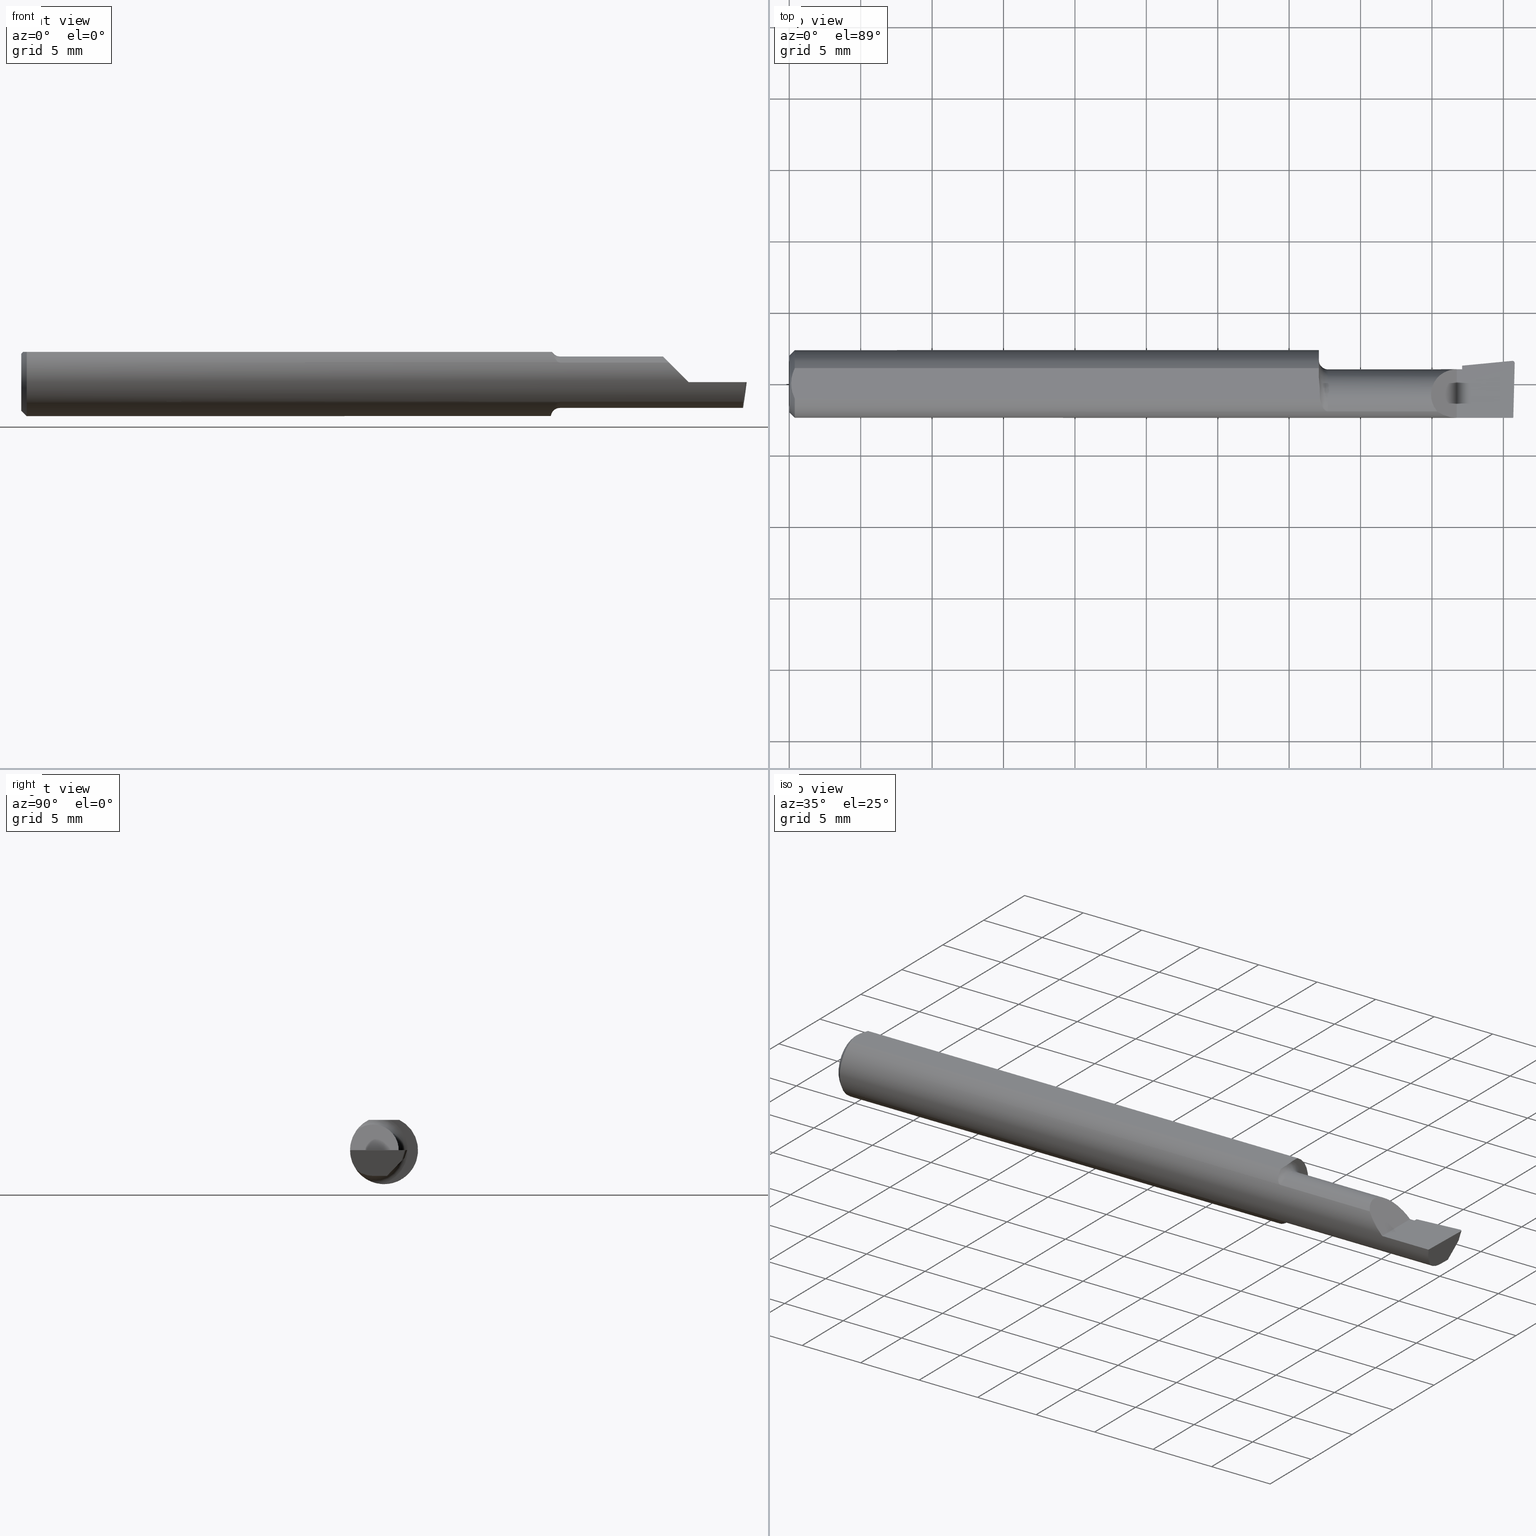
[diagram: canonical four-view strip — front | top / right | iso, engineering-drawing reading convention]
A machine part, canonical four-view strip (front | top / right | iso — engineering-drawing reading convention). The complete STEP part file that produces these views, byte-faithful:
ISO-10303-21;
HEADER;
FILE_DESCRIPTION (( 'STEP AP214' ),
    '1' );
FILE_NAME ('B160500R.STEP',
    '2020-05-08T22:44:34',
    ( '' ),
    ( '' ),
    'SwSTEP 2.0',
    'SolidWorks 2018',
    '' );
FILE_SCHEMA (( 'AUTOMOTIVE_DESIGN' ));
ENDSEC;

DATA;
#1 = CARTESIAN_POINT ( 'NONE',  ( 0.005981829149300850468, 0.01454044632356567279, 0.08360000000000000764 ) ) ;
#2 = DIRECTION ( 'NONE',  ( 0.0000000000000000000, 0.0000000000000000000, 1.000000000000000000 ) ) ;
#3 = DIRECTION ( 'NONE',  ( -1.000000000000000000, -0.0000000000000000000, -0.0000000000000000000 ) ) ;
#4 = CARTESIAN_POINT ( 'NONE',  ( 0.005000000000000223883, 0.007308422719211823959, 0.08360000000000000764 ) ) ;
#5 = ADVANCED_FACE ( 'NONE', ( #399 ), #286, .T. ) ;
#6 = ORIENTED_EDGE ( 'NONE', *, *, #424, .F. ) ;
#7 = DIRECTION ( 'NONE',  ( 0.9953961983671800740, 0.09584575252021028391, -0.0000000000000000000 ) ) ;
#8 = LINE ( 'NONE', #376, #29 ) ;
#9 = CARTESIAN_POINT ( 'NONE',  ( 0.005000000000000236026, 1.025183009042025117E-17, 0.08360000000000000764 ) ) ;
#10 = CARTESIAN_POINT ( 'NONE',  ( 1.434596552969581662, 0.003814945941878274301, -0.01999999999999999695 ) ) ;
#11 = ADVANCED_FACE ( 'NONE', ( #12 ), #489, .T. ) ;
#12 = FACE_OUTER_BOUND ( 'NONE', #590, .T. ) ;
#13 = VERTEX_POINT ( 'NONE', #210 ) ;
#14 = VECTOR ( 'NONE', #174, 39.37007874015748143 ) ;
#15 =( BOUNDED_CURVE ( )  B_SPLINE_CURVE ( 3, ( #368, #360, #359, #418 ),
 .UNSPECIFIED., .F., .T. ) 
 B_SPLINE_CURVE_WITH_KNOTS ( ( 4, 4 ),
 ( 0.7460354263298278887, 1.360746882514785705 ),
 .UNSPECIFIED. ) 
 CURVE ( )  GEOMETRIC_REPRESENTATION_ITEM ( )  RATIONAL_B_SPLINE_CURVE ( ( 1.000000000000000000, 0.9687579316594154832, 0.9687579316594154832, 1.000000000000000000 ) ) 
 REPRESENTATION_ITEM ( '' )  );
#16 = CARTESIAN_POINT ( 'NONE',  ( 0.01499999999999999598, 0.0000000000000000000, -0.09360000000000001652 ) ) ;
#17 = B_SPLINE_CURVE_WITH_KNOTS ( 'NONE', 3,
 ( #9, #4, #1, #257, #230, #225 ),
 .UNSPECIFIED., .F., .F.,
 ( 4, 2, 4 ),
 ( 0.006881281100865560205, 0.007427683811376459971, 0.007974086521887359738 ),
 .UNSPECIFIED. ) ;
#18 = VERTEX_POINT ( 'NONE', #23 ) ;
#19 = CARTESIAN_POINT ( 'NONE',  ( 1.986456763647800550, -0.06267397991240475363, -0.08317158399080336328 ) ) ;
#20 = ADVANCED_FACE ( 'NONE', ( #170 ), #668, .T. ) ;
#21 = ORIENTED_EDGE ( 'NONE', *, *, #600, .F. ) ;
#22 = FACE_OUTER_BOUND ( 'NONE', #222, .T. ) ;
#23 = CARTESIAN_POINT ( 'NONE',  ( 1.995862624392067852, -0.09360000000000009979, -6.605666309584449409E-17 ) ) ;
#24 = ORIENTED_EDGE ( 'NONE', *, *, #396, .T. ) ;
#25 = ORIENTED_EDGE ( 'NONE', *, *, #532, .F. ) ;
#26 = ADVANCED_FACE ( 'NONE', ( #189 ), #445, .F. ) ;
#27 = ORIENTED_EDGE ( 'NONE', *, *, #244, .T. ) ;
#28 = PRODUCT_DEFINITION_FORMATION_WITH_SPECIFIED_SOURCE ( 'ANY', '', #495, .NOT_KNOWN. ) ;
#29 = VECTOR ( 'NONE', #316, 39.37007874015748854 ) ;
#30 = AXIS2_PLACEMENT_3D ( 'NONE', #308, #266, #263 ) ;
#31 = ADVANCED_FACE ( 'NONE', ( #653 ), #503, .T. ) ;
#32 = VECTOR ( 'NONE', #490, 39.37007874015748143 ) ;
#33 = ORIENTED_EDGE ( 'NONE', *, *, #450, .F. ) ;
#34 = AXIS2_PLACEMENT_3D ( 'NONE', #238, #147, #491 ) ;
#35 = ADVANCED_FACE ( 'NONE', ( #139 ), #149, .F. ) ;
#36 = PRESENTATION_LAYER_ASSIGNMENT (  '', '', ( #611 ) ) ;
#37 = CIRCLE ( 'NONE', #576, 0.07089999999999994917 ) ;
#38 = CARTESIAN_POINT ( 'NONE',  ( 1.669999999999999929, -0.07646557377049184590, -0.05398125626501730501 ) ) ;
#39 = ORIENTED_EDGE ( 'NONE', *, *, #73, .F. ) ;
#40 = VERTEX_POINT ( 'NONE', #155 ) ;
#41 = CARTESIAN_POINT ( 'NONE',  ( 0.01499999999999999598, 0.0000000000000000000, -0.09360000000000001652 ) ) ;
#42 = ORIENTED_EDGE ( 'NONE', *, *, #477, .F. ) ;
#43 = AXIS2_PLACEMENT_3D ( 'NONE', #179, #159, #115 ) ;
#44 = ORIENTED_EDGE ( 'NONE', *, *, #145, .T. ) ;
#45 = CARTESIAN_POINT ( 'NONE',  ( 1.463304846087257527, -0.03228758060674653124, 0.08360000000000003539 ) ) ;
#46 = APPLICATION_CONTEXT ( 'automotive_design' ) ;
#47 = DIRECTION ( 'NONE',  ( -1.000000000000000000, -4.268512490100411279E-18, 0.0000000000000000000 ) ) ;
#48 = DIRECTION ( 'NONE',  ( -0.9922060308645512805, 0.02598182930468072652, 0.1218693434051217050 ) ) ;
#49 = CARTESIAN_POINT ( 'NONE',  ( 1.459999999999999742, 0.1436000000000000332, 0.08359999999999999376 ) ) ;
#50 = ORIENTED_EDGE ( 'NONE', *, *, #62, .T. ) ;
#51 = ORIENTED_EDGE ( 'NONE', *, *, #560, .F. ) ;
#52 = ORIENTED_EDGE ( 'NONE', *, *, #344, .F. ) ;
#53 = CARTESIAN_POINT ( 'NONE',  ( 1.989680968235101544, -0.07646557377049184590, -0.05398125626501730501 ) ) ;
#54 = MECHANICAL_DESIGN_GEOMETRIC_PRESENTATION_REPRESENTATION (  '', ( #611 ), #75 ) ;
#55 = DIRECTION ( 'NONE',  ( 1.253267817926300420E-18, -0.2936076258024066243, -0.9559260233253794592 ) ) ;
#56 = CARTESIAN_POINT ( 'NONE',  ( 1.840000000000000080, 0.04039999999999989433, 1.959434878635762025E-17 ) ) ;
#57 = LINE ( 'NONE', #280, #312 ) ;
#58 = VERTEX_POINT ( 'NONE', #56 ) ;
#59 = DIRECTION ( 'NONE',  ( 0.1219104985252570661, 0.0000000000000000000, 0.9925410975618708109 ) ) ;
#60 = EDGE_LOOP ( 'NONE', ( #284, #333, #473, #161 ) ) ;
#61 = VECTOR ( 'NONE', #380, 39.37007874015748143 ) ;
#62 = EDGE_CURVE ( 'NONE', #40, #423, #17, .T. ) ;
#63 = ORIENTED_EDGE ( 'NONE', *, *, #290, .T. ) ;
#64 = CARTESIAN_POINT ( 'NONE',  ( 5.659797890829555466E-31, -0.09359999999999998876, 1.030335658007946046E-15 ) ) ;
#65 = DIRECTION ( 'NONE',  ( 4.268512490100411279E-18, -1.000000000000000000, 1.189000693621284344E-16 ) ) ;
#66 = DIRECTION ( 'NONE',  ( 1.000000000000000000, 0.0000000000000000000, 0.0000000000000000000 ) ) ;
#67 = CARTESIAN_POINT ( 'NONE',  ( 1.669999999999999929, -0.07646557377049184590, 0.05398125626501730501 ) ) ;
#68 = CARTESIAN_POINT ( 'NONE',  ( 0.005000000000000228220, -0.007328888879231052964, 0.08360000000000000764 ) ) ;
#69 = CARTESIAN_POINT ( 'NONE',  ( 0.01499999999999999598, 0.0000000000000000000, 0.0000000000000000000 ) ) ;
#70 = VERTEX_POINT ( 'NONE', #261 ) ;
#71 = CARTESIAN_POINT ( 'NONE',  ( 1.854999999999999982, 0.04694360585384958762, -0.01137731495658560361 ) ) ;
#72 = VERTEX_POINT ( 'NONE', #53 ) ;
#73 = EDGE_CURVE ( 'NONE', #367, #384, #595, .T. ) ;
#74 = DIRECTION ( 'NONE',  ( -1.000000000000000000, -4.268512490100411279E-18, -0.0000000000000000000 ) ) ;
#75 =( GEOMETRIC_REPRESENTATION_CONTEXT ( 3 ) GLOBAL_UNCERTAINTY_ASSIGNED_CONTEXT ( ( #498 ) ) GLOBAL_UNIT_ASSIGNED_CONTEXT ( ( #84, #661, #356 ) ) REPRESENTATION_CONTEXT ( 'NONE', 'WORKASPACE' ) );
#76 = DIRECTION ( 'NONE',  ( -0.1240019227989063721, -0.3022330132596636743, -0.9451342385281351621 ) ) ;
#77 = DIRECTION ( 'NONE',  ( 0.0000000000000000000, 1.000000000000000000, -1.189000693621284344E-16 ) ) ;
#78 = CARTESIAN_POINT ( 'NONE',  ( 1.982891729545288362, 0.03166783622807465420, -0.07897382033917343946 ) ) ;
#79 = CARTESIAN_POINT ( 'NONE',  ( 0.005000000000000236026, 1.025183009042025117E-17, 0.08360000000000000764 ) ) ;
#80 = EDGE_LOOP ( 'NONE', ( #409, #350, #25, #264, #364, #24, #185, #92, #221, #88 ) ) ;
#81 = VECTOR ( 'NONE', #613, 39.37007874015748143 ) ;
#82 = ORIENTED_EDGE ( 'NONE', *, *, #424, .T. ) ;
#83 = DIRECTION ( 'NONE',  ( 0.0000000000000000000, -1.189000693621284344E-16, -1.000000000000000000 ) ) ;
#84 =( CONVERSION_BASED_UNIT ( 'INCH', #507 ) LENGTH_UNIT ( ) NAMED_UNIT ( #431 ) );
#85 = EDGE_CURVE ( 'NONE', #13, #367, #153, .T. ) ;
#86 = ADVANCED_FACE ( 'NONE', ( #555 ), #602, .T. ) ;
#87 = ORIENTED_EDGE ( 'NONE', *, *, #344, .T. ) ;
#88 = ORIENTED_EDGE ( 'NONE', *, *, #347, .F. ) ;
#89 = ORIENTED_EDGE ( 'NONE', *, *, #362, .F. ) ;
#90 = CARTESIAN_POINT ( 'NONE',  ( 1.840000000000000080, 0.04039999999999989433, 1.959434878635762025E-17 ) ) ;
#91 = AXIS2_PLACEMENT_3D ( 'NONE', #69, #268, #93 ) ;
#92 = ORIENTED_EDGE ( 'NONE', *, *, #95, .F. ) ;
#93 = DIRECTION ( 'NONE',  ( 0.0000000000000000000, 0.0000000000000000000, 1.000000000000000000 ) ) ;
#94 = LENGTH_MEASURE_WITH_UNIT ( LENGTH_MEASURE( 0.02539999999999999897 ), #619 );
#95 = EDGE_CURVE ( 'NONE', #435, #629, #497, .T. ) ;
#96 = ORIENTED_EDGE ( 'NONE', *, *, #85, .F. ) ;
#97 = VERTEX_POINT ( 'NONE', #313 ) ;
#98 = ORIENTED_EDGE ( 'NONE', *, *, #103, .F. ) ;
#99 = APPLICATION_CONTEXT ( 'automotive_design' ) ;
#100 = ADVANCED_BREP_SHAPE_REPRESENTATION ( 'B160500R', ( #352, #192 ), #637 ) ;
#101 = CARTESIAN_POINT ( 'NONE',  ( 1.840000000000000080, -0.09360000000000005815, 1.959434878635762025E-17 ) ) ;
#102 = ORIENTED_EDGE ( 'NONE', *, *, #379, .F. ) ;
#103 = EDGE_CURVE ( 'NONE', #70, #233, #650, .T. ) ;
#104 = CIRCLE ( 'NONE', #520, 0.09360000000000001652 ) ;
#105 = DIRECTION ( 'NONE',  ( 0.0000000000000000000, 0.0000000000000000000, 1.000000000000000000 ) ) ;
#106 = CARTESIAN_POINT ( 'NONE',  ( 2.000000000000000000, 0.1436000000000000332, 0.08359999999999999376 ) ) ;
#107 = CIRCLE ( 'NONE', #438, 0.09360000000000001652 ) ;
#108 = ORIENTED_EDGE ( 'NONE', *, *, #346, .T. ) ;
#109 = ORIENTED_EDGE ( 'NONE', *, *, #477, .T. ) ;
#110 = CARTESIAN_POINT ( 'NONE',  ( 1.840000000000000080, -0.2500000000000000555, 1.959434878635762025E-17 ) ) ;
#111 = AXIS2_PLACEMENT_3D ( 'NONE', #496, #125, #419 ) ;
#112 = EDGE_LOOP ( 'NONE', ( #21, #479, #44 ) ) ;
#113 = CARTESIAN_POINT ( 'NONE',  ( 1.988360720229886081, -0.04752541915734221495, -0.07089999999999999081 ) ) ;
#114 = ORIENTED_EDGE ( 'NONE', *, *, #237, .T. ) ;
#115 = DIRECTION ( 'NONE',  ( -1.000000000000000000, 0.0000000000000000000, 5.493159289247764363E-16 ) ) ;
#116 = DIRECTION ( 'NONE',  ( -0.1240019227989063721, -0.3022330132596635077, -0.9451342385281351621 ) ) ;
#117 = CARTESIAN_POINT ( 'NONE',  ( 1.989811960493453435, 0.007895210578134158330, -0.07090000000000001856 ) ) ;
#118 = CARTESIAN_POINT ( 'NONE',  ( 1.477475890146723536, -0.07388913376859289339, 0.05747801488572817918 ) ) ;
#119 = VERTEX_POINT ( 'NONE', #331 ) ;
#120 = CARTESIAN_POINT ( 'NONE',  ( 1.990883086864198681, 0.05733652896197521248, -0.02004403198038580067 ) ) ;
#121 = VECTOR ( 'NONE', #400, 39.37007874015748143 ) ;
#122 = CIRCLE ( 'NONE', #91, 0.09360000000000001652 ) ;
#123 = AXIS2_PLACEMENT_3D ( 'NONE', #516, #322, #324 ) ;
#124 = CARTESIAN_POINT ( 'NONE',  ( 1.786018743734982150, -0.07646557377049187365, 0.05398125626501727031 ) ) ;
#125 = DIRECTION ( 'NONE',  ( -0.7071067811865433539, 0.0000000000000000000, -0.7071067811865516806 ) ) ;
#126 = ORIENTED_EDGE ( 'NONE', *, *, #550, .F. ) ;
#127 = EDGE_LOOP ( 'NONE', ( #231, #549 ) ) ;
#128 = ORIENTED_EDGE ( 'NONE', *, *, #564, .T. ) ;
#129 = VECTOR ( 'NONE', #436, 39.37007874015748143 ) ;
#130 = CARTESIAN_POINT ( 'NONE',  ( 1.990684883739909372, 0.05734591258203657060, -0.02001468779820764210 ) ) ;
#131 = CARTESIAN_POINT ( 'NONE',  ( 1.462801882726447733, -0.04209513036031888727, 0.08360000000000000764 ) ) ;
#132 = PRODUCT_DEFINITION ( 'UNKNOWN', '', #28, #355 ) ;
#133 = CARTESIAN_POINT ( 'NONE',  ( 1.470886223621647115, -0.06626224018846522956, 0.06624030822967870435 ) ) ;
#134 = ORIENTED_EDGE ( 'NONE', *, *, #297, .F. ) ;
#135 = VERTEX_POINT ( 'NONE', #373 ) ;
#136 = CARTESIAN_POINT ( 'NONE',  ( 1.463150981066091427, -0.03719006435924377546, 0.08360000000000003539 ) ) ;
#137 = VECTOR ( 'NONE', #76, 39.37007874015748854 ) ;
#138 = EDGE_CURVE ( 'NONE', #72, #18, #15, .T. ) ;
#139 = FACE_OUTER_BOUND ( 'NONE', #197, .T. ) ;
#140 = VERTEX_POINT ( 'NONE', #530 ) ;
#141 = LINE ( 'NONE', #434, #61 ) ;
#142 = AXIS2_PLACEMENT_3D ( 'NONE', #588, #251, #234 ) ;
#143 = ORIENTED_EDGE ( 'NONE', *, *, #592, .T. ) ;
#144 = ORIENTED_EDGE ( 'NONE', *, *, #604, .F. ) ;
#145 = EDGE_CURVE ( 'NONE', #209, #58, #610, .T. ) ;
#146 = EDGE_LOOP ( 'NONE', ( #646, #42, #571, #552, #413, #339 ) ) ;
#147 = DIRECTION ( 'NONE',  ( -1.000000000000000000, -4.268512490100411279E-18, -0.0000000000000000000 ) ) ;
#148 = ADVANCED_FACE ( 'NONE', ( #666 ), #271, .F. ) ;
#149 = PLANE ( 'NONE',  #43 ) ;
#150 = CARTESIAN_POINT ( 'NONE',  ( 1.476159648777483735, -0.07275446879445292281, 0.05891786234966324420 ) ) ;
#151 = ORIENTED_EDGE ( 'NONE', *, *, #358, .F. ) ;
#152 = PLANE ( 'NONE',  #647 ) ;
#153 = LINE ( 'NONE', #317, #437 ) ;
#154 = CARTESIAN_POINT ( 'NONE',  ( 0.0000000000000000000, 0.0000000000000000000, 0.0000000000000000000 ) ) ;
#155 = CARTESIAN_POINT ( 'NONE',  ( 0.005000000000000236026, 1.025183009042025117E-17, 0.08360000000000000764 ) ) ;
#156 = LINE ( 'NONE', #49, #440 ) ;
#157 =( BOUNDED_CURVE ( )  B_SPLINE_CURVE ( 3, ( #255, #575, #236, #232 ),
 .UNSPECIFIED., .F., .T. ) 
 B_SPLINE_CURVE_WITH_KNOTS ( ( 4, 4 ),
 ( 4.712388980384689674, 5.327100436569646824 ),
 .UNSPECIFIED. ) 
 CURVE ( )  GEOMETRIC_REPRESENTATION_ITEM ( )  RATIONAL_B_SPLINE_CURVE ( ( 1.000000000000000000, 0.9687579316594155943, 0.9687579316594155943, 1.000000000000000000 ) ) 
 REPRESENTATION_ITEM ( '' )  );
#158 = LINE ( 'NONE', #160, #460 ) ;
#159 = DIRECTION ( 'NONE',  ( -5.493159289247764363E-16, 0.0000000000000000000, -1.000000000000000000 ) ) ;
#160 = CARTESIAN_POINT ( 'NONE',  ( 1.854999999999999982, 0.02466814268713797206, -0.04023083677511909290 ) ) ;
#161 = ORIENTED_EDGE ( 'NONE', *, *, #218, .F. ) ;
#162 = DIRECTION ( 'NONE',  ( 1.000000000000000000, 0.0000000000000000000, 0.0000000000000000000 ) ) ;
#163 = ORIENTED_EDGE ( 'NONE', *, *, #201, .F. ) ;
#164 = CARTESIAN_POINT ( 'NONE',  ( 1.786018743734982150, -0.07646557377049187365, 0.05398125626501727031 ) ) ;
#165 = ORIENTED_EDGE ( 'NONE', *, *, #188, .T. ) ;
#166 = CARTESIAN_POINT ( 'NONE',  ( 1.472663484135164236, -0.06910045470751315089, 0.06324836830213451111 ) ) ;
#167 = DIRECTION ( 'NONE',  ( 0.0000000000000000000, 0.0000000000000000000, 1.000000000000000000 ) ) ;
#168 = LINE ( 'NONE', #206, #177 ) ;
#169 = DIRECTION ( 'NONE',  ( 0.0000000000000000000, 0.0000000000000000000, -1.000000000000000000 ) ) ;
#170 = FACE_OUTER_BOUND ( 'NONE', #326, .T. ) ;
#171 = ORIENTED_EDGE ( 'NONE', *, *, #347, .T. ) ;
#172 = CARTESIAN_POINT ( 'NONE',  ( 0.01499999999999999598, 0.0000000000000000000, 0.0000000000000000000 ) ) ;
#173 = CARTESIAN_POINT ( 'NONE',  ( 1.463100172961549150, -0.02248939038937020768, 0.08360000000000003539 ) ) ;
#174 = DIRECTION ( 'NONE',  ( -1.000000000000000000, -0.0000000000000000000, -0.0000000000000000000 ) ) ;
#175 = DIRECTION ( 'NONE',  ( -1.000000000000000000, 5.691349986800549142E-18, -0.0000000000000000000 ) ) ;
#176 = DIRECTION ( 'NONE',  ( 1.000000000000000000, 0.0000000000000000000, 0.0000000000000000000 ) ) ;
#177 = VECTOR ( 'NONE', #116, 39.37007874015748854 ) ;
#178 = FACE_OUTER_BOUND ( 'NONE', #287, .T. ) ;
#179 = CARTESIAN_POINT ( 'NONE',  ( 2.000000000000000000, -0.2500000000000000555, -6.829619984160658046E-17 ) ) ;
#180 = AXIS2_PLACEMENT_3D ( 'NONE', #655, #455, #462 ) ;
#181 = CARTESIAN_POINT ( 'NONE',  ( 1.992906680581891354, 0.06371699102466910070, -6.439972649628823803E-17 ) ) ;
#182 = CARTESIAN_POINT ( 'NONE',  ( 1.988806546520622609, -0.03049999999999999586, -0.07090000000000000469 ) ) ;
#183 = VERTEX_POINT ( 'NONE', #518 ) ;
#184 = ADVANCED_FACE ( 'NONE', ( #542 ), #486, .F. ) ;
#185 = ORIENTED_EDGE ( 'NONE', *, *, #557, .T. ) ;
#186 = CARTESIAN_POINT ( 'NONE',  ( 1.484999999999999876, -0.03049999999999999586, 0.0000000000000000000 ) ) ;
#187 = CARTESIAN_POINT ( 'NONE',  ( 1.854999999999999982, 0.02466814268713797206, -0.04023083677511909290 ) ) ;
#188 = EDGE_CURVE ( 'NONE', #18, #209, #587, .T. ) ;
#189 = FACE_OUTER_BOUND ( 'NONE', #643, .T. ) ;
#190 = ORIENTED_EDGE ( 'NONE', *, *, #379, .T. ) ;
#191 = CARTESIAN_POINT ( 'NONE',  ( 1.740628359091399568, -0.02315981068686312830, 0.09937164090859931798 ) ) ;
#192 = AXIS2_PLACEMENT_3D ( 'NONE', #433, #167, #487 ) ;
#193 = EDGE_LOOP ( 'NONE', ( #341, #354, #414, #478, #499 ) ) ;
#194 = CARTESIAN_POINT ( 'NONE',  ( 0.01499999999999999598, 1.146269404001922775E-17, 0.09360000000000001652 ) ) ;
#195 = ORIENTED_EDGE ( 'NONE', *, *, #188, .F. ) ;
#196 = FILL_AREA_STYLE ('',( #226 ) ) ;
#197 = EDGE_LOOP ( 'NONE', ( #594, #27, #82, #96, #459, #239, #392, #195 ) ) ;
#198 = FILL_AREA_STYLE_COLOUR ( '', #522 ) ;
#199 = CARTESIAN_POINT ( 'NONE',  ( 1.993512870449312580, 0.06374616680637194832, -8.537024980200822558E-17 ) ) ;
#200 = CARTESIAN_POINT ( 'NONE',  ( 1.993108609909221673, 0.06373643460740099909, -6.821681774272517474E-17 ) ) ;
#201 = EDGE_CURVE ( 'NONE', #384, #140, #404, .T. ) ;
#202 = CARTESIAN_POINT ( 'NONE',  ( 1.459999999999999964, 0.006771783253975718897, 0.08360000000000003539 ) ) ;
#203 = AXIS2_PLACEMENT_3D ( 'NONE', #583, #3, #105 ) ;
#204 = DIRECTION ( 'NONE',  ( 4.268512490100411279E-18, -1.000000000000000000, 0.0000000000000000000 ) ) ;
#205 = CARTESIAN_POINT ( 'NONE',  ( 1.854999999999999982, 0.003160401389698347125, -0.06240021937689312764 ) ) ;
#206 = CARTESIAN_POINT ( 'NONE',  ( 1.982891729545288362, 0.03785899225921186134, -0.08095361502502179674 ) ) ;
#207 = UNCERTAINTY_MEASURE_WITH_UNIT (LENGTH_MEASURE( 1.000000000000000082E-05 ), #599, 'distance_accuracy_value', 'NONE');
#208 = ORIENTED_EDGE ( 'NONE', *, *, #309, .T. ) ;
#209 = VERTEX_POINT ( 'NONE', #101 ) ;
#210 = CARTESIAN_POINT ( 'NONE',  ( 1.854999999999999982, 0.05043808801135914871, 1.030845766359249298E-15 ) ) ;
#211 = ORIENTED_EDGE ( 'NONE', *, *, #138, .F. ) ;
#212 = CARTESIAN_POINT ( 'NONE',  ( 1.999910038027502335, 0.06096449087509764331, -7.195295054753372541E-17 ) ) ;
#213 = DIRECTION ( 'NONE',  ( -1.000000000000000000, -4.268512490100411279E-18, 0.0000000000000000000 ) ) ;
#214 = SURFACE_SIDE_STYLE ('',( #285 ) ) ;
#215 = ORIENTED_EDGE ( 'NONE', *, *, #550, .T. ) ;
#216 = CARTESIAN_POINT ( 'NONE',  ( 1.982295954176957586, 0.03785519999875404384, -0.08087423641987113998 ) ) ;
#217 = CARTESIAN_POINT ( 'NONE',  ( 1.993512870449312580, 0.06374616680637194832, -8.537024980200822558E-17 ) ) ;
#218 = EDGE_CURVE ( 'NONE', #13, #119, #277, .T. ) ;
#219 = ORIENTED_EDGE ( 'NONE', *, *, #218, .T. ) ;
#220 = FILL_AREA_STYLE ('',( #198 ) ) ;
#221 = ORIENTED_EDGE ( 'NONE', *, *, #362, .T. ) ;
#222 = EDGE_LOOP ( 'NONE', ( #63, #215 ) ) ;
#223 = PLANE ( 'NONE',  #334 ) ;
#224 = VECTOR ( 'NONE', #390, 39.37007874015748143 ) ;
#225 = CARTESIAN_POINT ( 'NONE',  ( 0.01499999999999999598, 0.04209513035969837669, 0.08360000000000000764 ) ) ;
#226 = FILL_AREA_STYLE_COLOUR ( '', #335 ) ;
#227 = CIRCLE ( 'NONE', #508, 0.07089999999999999081 ) ;
#228 = CARTESIAN_POINT ( 'NONE',  ( 1.990282674007079144, 0.05732143363315343049, -0.01999999999999999695 ) ) ;
#229 = DIRECTION ( 'NONE',  ( 0.0000000000000000000, -1.000000000000000000, 0.0000000000000000000 ) ) ;
#230 = CARTESIAN_POINT ( 'NONE',  ( 0.01203648650249650523, 0.03550565407121123590, 0.08360000000000000764 ) ) ;
#231 = ORIENTED_EDGE ( 'NONE', *, *, #95, .T. ) ;
#232 = CARTESIAN_POINT ( 'NONE',  ( 1.786018743734982150, -0.07646557377049187365, 0.05398125626501727031 ) ) ;
#233 = VERTEX_POINT ( 'NONE', #117 ) ;
#234 = DIRECTION ( 'NONE',  ( 0.0000000000000000000, 0.0000000000000000000, 1.000000000000000000 ) ) ;
#235 = AXIS2_PLACEMENT_3D ( 'NONE', #154, #176, #596 ) ;
#236 = CARTESIAN_POINT ( 'NONE',  ( 1.801938678439108932, -0.08770433171880961942, 0.03806132156089080121 ) ) ;
#237 = EDGE_CURVE ( 'NONE', #140, #135, #429, .T. ) ;
#238 = CARTESIAN_POINT ( 'NONE',  ( 0.0000000000000000000, -0.03050000000000000627, 0.0000000000000000000 ) ) ;
#239 = ORIENTED_EDGE ( 'NONE', *, *, #396, .F. ) ;
#240 = ORIENTED_EDGE ( 'NONE', *, *, #560, .T. ) ;
#241 = LINE ( 'NONE', #584, #448 ) ;
#242 = ORIENTED_EDGE ( 'NONE', *, *, #464, .T. ) ;
#243 = EDGE_LOOP ( 'NONE', ( #449, #484, #165, #624, #556, #298, #476, #318, #544, #458, #102, #134 ) ) ;
#244 = EDGE_CURVE ( 'NONE', #395, #565, #547, .T. ) ;
#245 = AXIS2_PLACEMENT_3D ( 'NONE', #538, #410, #648 ) ;
#246 = DIRECTION ( 'NONE',  ( 0.7071067811865391350, 8.659560562355035164E-17, 0.7071067811865558994 ) ) ;
#247 = FACE_OUTER_BOUND ( 'NONE', #466, .T. ) ;
#248 = PRESENTATION_STYLE_ASSIGNMENT (( #468 ) ) ;
#249 = VERTEX_POINT ( 'NONE', #470 ) ;
#250 = CARTESIAN_POINT ( 'NONE',  ( 1.484999999999999876, -0.07646557377049210957, -0.05398125626501704133 ) ) ;
#251 = DIRECTION ( 'NONE',  ( -1.000000000000000000, -0.0000000000000000000, -0.0000000000000000000 ) ) ;
#252 = EDGE_CURVE ( 'NONE', #342, #456, #349, .T. ) ;
#253 = DIRECTION ( 'NONE',  ( 0.0000000000000000000, 0.9524855432518779530, -0.3045837978228238541 ) ) ;
#254 = CARTESIAN_POINT ( 'NONE',  ( -3.026375355475531123E-19, 0.04039999999999997066, 1.030335658007946046E-15 ) ) ;
#255 = CARTESIAN_POINT ( 'NONE',  ( 1.840000000000000080, -0.09360000000000005815, 1.959434878635762025E-17 ) ) ;
#256 = FACE_OUTER_BOUND ( 'NONE', #80, .T. ) ;
#257 = CARTESIAN_POINT ( 'NONE',  ( 0.009492654797564337166, 0.02859466010166625619, 0.08359999999999997988 ) ) ;
#258 = CARTESIAN_POINT ( 'NONE',  ( 1.462866246175463569, -0.04341922408232372355, -0.08323100132652176686 ) ) ;
#259 = DIRECTION ( 'NONE',  ( 4.268512490100411279E-18, -1.000000000000000000, 0.0000000000000000000 ) ) ;
#260 = CYLINDRICAL_SURFACE ( 'NONE', #34, 0.07089999999999999081 ) ;
#261 = CARTESIAN_POINT ( 'NONE',  ( 1.854999999999999982, -0.005085704783422788366, -0.07090000000000000469 ) ) ;
#262 = CARTESIAN_POINT ( 'NONE',  ( 1.993310817358675324, 0.06374616680637197608, -6.832789351565723493E-17 ) ) ;
#263 = DIRECTION ( 'NONE',  ( 0.0000000000000000000, 0.9524855432518779530, -0.3045837978228238541 ) ) ;
#264 = ORIENTED_EDGE ( 'NONE', *, *, #252, .T. ) ;
#265 = CARTESIAN_POINT ( 'NONE',  ( 1.459999999999993525, -0.01550498344099977659, -0.09260523827686173437 ) ) ;
#266 = DIRECTION ( 'NONE',  ( -0.1240019227989063860, -0.3022330132596635632, -0.9451342385281352731 ) ) ;
#267 = CARTESIAN_POINT ( 'NONE',  ( 1.854999999999999982, 0.03289115998609076080, -0.03175485530777679560 ) ) ;
#268 = DIRECTION ( 'NONE',  ( -1.000000000000000000, -0.0000000000000000000, -0.0000000000000000000 ) ) ;
#269 = ADVANCED_FACE ( 'NONE', ( #247 ), #472, .T. ) ;
#270 = FACE_OUTER_BOUND ( 'NONE', #243, .T. ) ;
#271 = PLANE ( 'NONE',  #123 ) ;
#272 = EDGE_CURVE ( 'NONE', #18, #395, #241, .T. ) ;
#273 = CARTESIAN_POINT ( 'NONE',  ( 0.01206089165507025739, -0.03555991978469312531, 0.08360000000000000764 ) ) ;
#274 = AXIS2_PLACEMENT_3D ( 'NONE', #19, #48, #59 ) ;
#275 = DIMENSIONAL_EXPONENTS ( 1.000000000000000000, 0.0000000000000000000, 0.0000000000000000000, 0.0000000000000000000, 0.0000000000000000000, 0.0000000000000000000, 0.0000000000000000000 ) ;
#276 = CARTESIAN_POINT ( 'NONE',  ( 1.999806390372778075, 0.05700634663142065822, -6.825504076481286703E-17 ) ) ;
#277 = LINE ( 'NONE', #71, #567 ) ;
#278 = DIRECTION ( 'NONE',  ( 1.000000000000000000, 4.268512490100411279E-18, 0.0000000000000000000 ) ) ;
#279 = B_SPLINE_CURVE_WITH_KNOTS ( 'NONE', 3,
 ( #662, #273, #529, #660, #68, #79 ),
 .UNSPECIFIED., .F., .F.,
 ( 4, 2, 4 ),
 ( 0.005785415439423114564, 0.006333348270144337384, 0.006881281100865560205 ),
 .UNSPECIFIED. ) ;
#280 = CARTESIAN_POINT ( 'NONE',  ( 1.985368221927906740, 0.02181583460911402580, -0.1100467398478503223 ) ) ;
#281 = FACE_OUTER_BOUND ( 'NONE', #146, .T. ) ;
#282 = CARTESIAN_POINT ( 'NONE',  ( 2.000000000000000000, -0.03049999999999999586, -0.07090000000000000469 ) ) ;
#283 = DIRECTION ( 'NONE',  ( -0.0000000000000000000, 0.0000000000000000000, 1.000000000000000000 ) ) ;
#284 = ORIENTED_EDGE ( 'NONE', *, *, #85, .T. ) ;
#285 = SURFACE_STYLE_FILL_AREA ( #196 ) ;
#286 = CYLINDRICAL_SURFACE ( 'NONE', #340, 0.006500000000000000569 ) ;
#287 = EDGE_LOOP ( 'NONE', ( #242, #325, #114, #240, #98, #393, #151, #505 ) ) ;
#288 = CARTESIAN_POINT ( 'NONE',  ( 1.462801882726447733, -0.04209513036031888727, 0.08360000000000000764 ) ) ;
#289 = VERTEX_POINT ( 'NONE', #568 ) ;
#290 = EDGE_CURVE ( 'NONE', #183, #289, #482, .T. ) ;
#291 = ORIENTED_EDGE ( 'NONE', *, *, #621, .T. ) ;
#292 = ORIENTED_EDGE ( 'NONE', *, *, #103, .T. ) ;
#293 = VECTOR ( 'NONE', #375, 39.37007874015748854 ) ;
#294 = SHAPE_DEFINITION_REPRESENTATION ( #561, #100 ) ;
#295 = LINE ( 'NONE', #282, #343 ) ;
#296 = VERTEX_POINT ( 'NONE', #589 ) ;
#297 = EDGE_CURVE ( 'NONE', #531, #336, #442, .T. ) ;
#298 = ORIENTED_EDGE ( 'NONE', *, *, #323, .F. ) ;
#299 = LINE ( 'NONE', #254, #321 ) ;
#300 = CARTESIAN_POINT ( 'NONE',  ( 1.990484603334409242, 0.05734087721588521785, -0.01999999999999998307 ) ) ;
#301 = CARTESIAN_POINT ( 'NONE',  ( 1.854999999999999982, -0.03049999999999999586, -0.07090000000000000469 ) ) ;
#302 = DIRECTION ( 'NONE',  ( 0.9953961983671787417, 0.09584575252022466130, -5.467869873542577569E-16 ) ) ;
#303 = DIRECTION ( 'NONE',  ( 0.0000000000000000000, 1.000000000000000000, 0.0000000000000000000 ) ) ;
#304 = EDGE_CURVE ( 'NONE', #512, #40, #279, .T. ) ;
#305 = LINE ( 'NONE', #665, #558 ) ;
#306 = DIRECTION ( 'NONE',  ( 2.972230601656783191E-18, -0.6963153109074925462, -0.7177360153954946975 ) ) ;
#307 = DIRECTION ( 'NONE',  ( 1.000000000000000000, 4.268512490100411279E-18, 0.0000000000000000000 ) ) ;
#308 = CARTESIAN_POINT ( 'NONE',  ( 1.982891729545288362, 0.03166783622807465420, -0.07897382033917343946 ) ) ;
#309 = EDGE_CURVE ( 'NONE', #423, #551, #107, .T. ) ;
#310 = CARTESIAN_POINT ( 'NONE',  ( 1.459999999999999742, 0.0000000000000000000, 0.0000000000000000000 ) ) ;
#311 = LINE ( 'NONE', #406, #574 ) ;
#312 = VECTOR ( 'NONE', #657, 39.37007874015748854 ) ;
#313 = CARTESIAN_POINT ( 'NONE',  ( 1.988806546520622609, -0.03049999999999999586, -0.07090000000000000469 ) ) ;
#314 = DIRECTION ( 'NONE',  ( -1.000000000000000000, -0.0000000000000000000, -0.0000000000000000000 ) ) ;
#315 = ORIENTED_EDGE ( 'NONE', *, *, #272, .F. ) ;
#316 = DIRECTION ( 'NONE',  ( -0.02617694830786038498, -0.9996573249755575929, 0.0000000000000000000 ) ) ;
#317 = CARTESIAN_POINT ( 'NONE',  ( 1.014425817094896765, -0.03050000000000000280, 4.730953979651876041E-16 ) ) ;
#318 = ORIENTED_EDGE ( 'NONE', *, *, #579, .F. ) ;
#319 = DIRECTION ( 'NONE',  ( 1.000000000000000000, 4.268512490100411279E-18, 0.0000000000000000000 ) ) ;
#320 = SURFACE_SIDE_STYLE ('',( #457 ) ) ;
#321 = VECTOR ( 'NONE', #319, 39.37007874015748143 ) ;
#322 = DIRECTION ( 'NONE',  ( 0.09165774897393337561, -0.9519021185660612172, 0.2923717047227308852 ) ) ;
#323 = EDGE_CURVE ( 'NONE', #597, #342, #635, .T. ) ;
#324 = DIRECTION ( 'NONE',  ( 0.0000000000000000000, -0.2936076258024066243, -0.9559260233253794592 ) ) ;
#325 = ORIENTED_EDGE ( 'NONE', *, *, #201, .T. ) ;
#326 = EDGE_LOOP ( 'NONE', ( #345, #52, #89 ) ) ;
#327 = DIRECTION ( 'NONE',  ( 0.0000000000000000000, -1.000000000000000000, 0.0000000000000000000 ) ) ;
#328 = APPLICATION_PROTOCOL_DEFINITION ( 'draft international standard', 'automotive_design', 1998, #46 ) ;
#329 = EDGE_CURVE ( 'NONE', #183, #551, #493, .T. ) ;
#330 = LINE ( 'NONE', #10, #426 ) ;
#331 = CARTESIAN_POINT ( 'NONE',  ( 1.854999999999999982, 0.04429519371539577394, -0.01999999999999999695 ) ) ;
#332 = DIRECTION ( 'NONE',  ( -1.000000000000000000, -4.268512490100411279E-18, -0.0000000000000000000 ) ) ;
#333 = ORIENTED_EDGE ( 'NONE', *, *, #73, .T. ) ;
#334 = AXIS2_PLACEMENT_3D ( 'NONE', #366, #283, #403 ) ;
#335 = COLOUR_RGB ( '',0.7529411764705882248, 0.7529411764705882248, 0.7529411764705882248 ) ;
#336 = VERTEX_POINT ( 'NONE', #573 ) ;
#337 = CARTESIAN_POINT ( 'NONE',  ( 1.854999999999999982, -0.03049999999999999586, 0.0000000000000000000 ) ) ;
#338 = CARTESIAN_POINT ( 'NONE',  ( 1.854999999999999982, -0.03049999999999999586, 0.0000000000000000000 ) ) ;
#339 = ORIENTED_EDGE ( 'NONE', *, *, #494, .F. ) ;
#340 = AXIS2_PLACEMENT_3D ( 'NONE', #78, #620, #253 ) ;
#341 = ORIENTED_EDGE ( 'NONE', *, *, #621, .F. ) ;
#342 = VERTEX_POINT ( 'NONE', #412 ) ;
#343 = VECTOR ( 'NONE', #175, 39.37007874015748143 ) ;
#344 = EDGE_CURVE ( 'NONE', #357, #70, #506, .T. ) ;
#345 = ORIENTED_EDGE ( 'NONE', *, *, #645, .T. ) ;
#346 = EDGE_CURVE ( 'NONE', #296, #13, #141, .T. ) ;
#347 = EDGE_CURVE ( 'NONE', #97, #357, #295, .T. ) ;
#348 = EDGE_LOOP ( 'NONE', ( #51, #382, #315, #211, #143, #502 ) ) ;
#349 = LINE ( 'NONE', #67, #32 ) ;
#350 = ORIENTED_EDGE ( 'NONE', *, *, #524, .T. ) ;
#351 = ORIENTED_EDGE ( 'NONE', *, *, #554, .T. ) ;
#352 = MANIFOLD_SOLID_BREP ( 'F6E80534-CB0D-4b95-BBE5-BBCB3F349D56-GAAFaceID16', #492 ) ;
#353 = CARTESIAN_POINT ( 'NONE',  ( 1.988664666329833741, -0.06350290078668613392, -0.06501910055627768692 ) ) ;
#354 = ORIENTED_EDGE ( 'NONE', *, *, #290, .F. ) ;
#355 = PRODUCT_DEFINITION_CONTEXT ( 'detailed design', #99, 'design' ) ;
#356 =( NAMED_UNIT ( * ) SI_UNIT ( $, .STERADIAN. ) SOLID_ANGLE_UNIT ( ) );
#357 = VERTEX_POINT ( 'NONE', #301 ) ;
#358 = EDGE_CURVE ( 'NONE', #629, #435, #397, .T. ) ;
#359 = CARTESIAN_POINT ( 'NONE',  ( 1.993469067315748022, -0.09360000000000003040, -0.01948727793214145160 ) ) ;
#360 = CARTESIAN_POINT ( 'NONE',  ( 1.991342063257270034, -0.08770433171880957779, -0.03806132156089093305 ) ) ;
#361 = CARTESIAN_POINT ( 'NONE',  ( 1.472379481194433515, -0.06851133057105320001, -0.06386523205972806372 ) ) ;
#362 = EDGE_CURVE ( 'NONE', #435, #357, #227, .T. ) ;
#363 = CARTESIAN_POINT ( 'NONE',  ( 1.990282674007079144, 0.05732143363315343049, -0.01999999999999999695 ) ) ;
#364 = ORIENTED_EDGE ( 'NONE', *, *, #600, .T. ) ;
#365 = ORIENTED_EDGE ( 'NONE', *, *, #387, .T. ) ;
#366 = CARTESIAN_POINT ( 'NONE',  ( 2.000000000000000000, -0.03049999999999999586, -0.07090000000000000469 ) ) ;
#367 = VERTEX_POINT ( 'NONE', #389 ) ;
#368 = CARTESIAN_POINT ( 'NONE',  ( 1.989680968235101544, -0.07646557377049184590, -0.05398125626501730501 ) ) ;
#369 = PRODUCT_CONTEXT ( 'NONE', #46, 'mechanical' ) ;
#370 = FACE_OUTER_BOUND ( 'NONE', #112, .T. ) ;
#371 = ORIENTED_EDGE ( 'NONE', *, *, #329, .F. ) ;
#372 = ORIENTED_EDGE ( 'NONE', *, *, #244, .F. ) ;
#373 = CARTESIAN_POINT ( 'NONE',  ( 1.995722974169267028, 0.04705373335152986808, -0.03112352112763097992 ) ) ;
#374 = DIRECTION ( 'NONE',  ( -1.000000000000000000, -0.0000000000000000000, -0.0000000000000000000 ) ) ;
#375 = DIRECTION ( 'NONE',  ( 0.9953961983671800740, 0.09584575252021028391, 0.0000000000000000000 ) ) ;
#376 = CARTESIAN_POINT ( 'NONE',  ( 1.988814216640107491, -0.03020708995424807933, -0.07090000000000000469 ) ) ;
#377 = CARTESIAN_POINT ( 'NONE',  ( 1.996243332730717412, 0.008514481289464279762, -0.07090000000000000469 ) ) ;
#378 = DIMENSIONAL_EXPONENTS ( 1.000000000000000000, 0.0000000000000000000, 0.0000000000000000000, 0.0000000000000000000, 0.0000000000000000000, 0.0000000000000000000, 0.0000000000000000000 ) ;
#379 = EDGE_CURVE ( 'NONE', #336, #249, #104, .T. ) ;
#380 = DIRECTION ( 'NONE',  ( -4.268512490100411279E-18, 1.000000000000000000, 2.344761903626518103E-33 ) ) ;
#381 = DIRECTION ( 'NONE',  ( 0.0000000000000000000, -1.000000000000000000, 0.0000000000000000000 ) ) ;
#382 = ORIENTED_EDGE ( 'NONE', *, *, #604, .T. ) ;
#383 = CARTESIAN_POINT ( 'NONE',  ( 1.482734503266369241, -0.07646557377049209570, 0.05398125626501700663 ) ) ;
#384 = VERTEX_POINT ( 'NONE', #363 ) ;
#385 = CARTESIAN_POINT ( 'NONE',  ( 0.01499999999999999598, 0.0000000000000000000, 0.0000000000000000000 ) ) ;
#386 = LINE ( 'NONE', #187, #541 ) ;
#387 = EDGE_CURVE ( 'NONE', #233, #97, #8, .T. ) ;
#388 = DIRECTION ( 'NONE',  ( -1.000000000000000000, -4.268512490100411279E-18, -0.0000000000000000000 ) ) ;
#389 = CARTESIAN_POINT ( 'NONE',  ( 1.992906680581891354, 0.06371699102466910070, -6.439972649628823803E-17 ) ) ;
#390 = DIRECTION ( 'NONE',  ( -0.0000000000000000000, 1.000000000000000000, -0.0000000000000000000 ) ) ;
#391 = DIRECTION ( 'NONE',  ( 2.972230601656783191E-18, -0.6963153109074925462, -0.7177360153954946975 ) ) ;
#392 = ORIENTED_EDGE ( 'NONE', *, *, #145, .F. ) ;
#393 = ORIENTED_EDGE ( 'NONE', *, *, #645, .F. ) ;
#394 = CONICAL_SURFACE ( 'NONE', #649, 0.09360000000000001652, 0.7853981633974601584 ) ;
#395 = VERTEX_POINT ( 'NONE', #276 ) ;
#396 = EDGE_CURVE ( 'NONE', #58, #296, #299, .T. ) ;
#397 = LINE ( 'NONE', #425, #504 ) ;
#398 = LINE ( 'NONE', #194, #539 ) ;
#399 = FACE_OUTER_BOUND ( 'NONE', #446, .T. ) ;
#400 = DIRECTION ( 'NONE',  ( -0.1053106618241542308, -0.6976485211320179181, -0.7086580314005247461 ) ) ;
#401 = ORIENTED_EDGE ( 'NONE', *, *, #557, .F. ) ;
#402 = AXIS2_PLACEMENT_3D ( 'NONE', #528, #631, #480 ) ;
#403 = DIRECTION ( 'NONE',  ( 1.000000000000000000, 0.0000000000000000000, 0.0000000000000000000 ) ) ;
#404 =( BOUNDED_CURVE ( )  B_SPLINE_CURVE ( 3, ( #228, #300, #130, #120 ),
 .UNSPECIFIED., .F., .T. ) 
 B_SPLINE_CURVE_WITH_KNOTS ( ( 4, 4 ),
 ( 3.064097098354615856, 3.156599629463139323 ),
 .UNSPECIFIED. ) 
 CURVE ( )  GEOMETRIC_REPRESENTATION_ITEM ( )  RATIONAL_B_SPLINE_CURVE ( ( 1.000000000000000000, 0.9992870672494019724, 0.9992870672494019724, 1.000000000000000000 ) ) 
 REPRESENTATION_ITEM ( '' )  );
#405 = AXIS2_PLACEMENT_3D ( 'NONE', #407, #534, #548 ) ;
#406 = CARTESIAN_POINT ( 'NONE',  ( 0.0000000000000000000, -0.04209513035969835587, 0.08360000000000000764 ) ) ;
#407 = CARTESIAN_POINT ( 'NONE',  ( 1.459999999999999742, -0.03050000000000000280, 0.0000000000000000000 ) ) ;
#408 = AXIS2_PLACEMENT_3D ( 'NONE', #172, #162, #169 ) ;
#409 = ORIENTED_EDGE ( 'NONE', *, *, #592, .F. ) ;
#410 = DIRECTION ( 'NONE',  ( -1.000000000000000000, -4.268512490100411279E-18, -0.0000000000000000000 ) ) ;
#411 = CARTESIAN_POINT ( 'NONE',  ( 1.854999999999999982, 0.05043808801135670622, 0.0000000000000000000 ) ) ;
#412 = CARTESIAN_POINT ( 'NONE',  ( 1.484999999999999876, -0.07646557377049210957, 0.05398125626501704133 ) ) ;
#413 = ORIENTED_EDGE ( 'NONE', *, *, #304, .F. ) ;
#414 = ORIENTED_EDGE ( 'NONE', *, *, #329, .T. ) ;
#415 = DIRECTION ( 'NONE',  ( 1.000000000000000000, 4.268512490100411279E-18, 0.0000000000000000000 ) ) ;
#416 = CARTESIAN_POINT ( 'NONE',  ( 1.987153287650115008, -0.009717623157789186117, -0.08879077981908643780 ) ) ;
#417 = APPLICATION_PROTOCOL_DEFINITION ( 'draft international standard', 'automotive_design', 1998, #99 ) ;
#418 = CARTESIAN_POINT ( 'NONE',  ( 1.995862624392067852, -0.09360000000000009979, -6.605666309584449409E-17 ) ) ;
#419 = DIRECTION ( 'NONE',  ( -0.7071067811865516806, 0.0000000000000000000, 0.7071067811865433539 ) ) ;
#420 = CARTESIAN_POINT ( 'NONE',  ( 1.468064680686318457, -0.06127374973417917814, -0.07108395546218124195 ) ) ;
#421 = EDGE_CURVE ( 'NONE', #209, #456, #157, .T. ) ;
#422 = AXIS2_PLACEMENT_3D ( 'NONE', #521, #526, #540 ) ;
#423 = VERTEX_POINT ( 'NONE', #577 ) ;
#424 = EDGE_CURVE ( 'NONE', #565, #367, #451, .T. ) ;
#425 = CARTESIAN_POINT ( 'NONE',  ( 1.854999999999999982, 0.02466814268713797206, -0.04023083677511909290 ) ) ;
#426 = VECTOR ( 'NONE', #7, 39.37007874015748143 ) ;
#427 = CARTESIAN_POINT ( 'NONE',  ( 1.466019021117886290, -0.05561872204144578669, -0.07562530238090224566 ) ) ;
#428 = VERTEX_POINT ( 'NONE', #580 ) ;
#429 =( BOUNDED_CURVE ( )  B_SPLINE_CURVE ( 3, ( #617, #566, #632, #634 ),
 .UNSPECIFIED., .F., .T. ) 
 B_SPLINE_CURVE_WITH_KNOTS ( ( 4, 4 ),
 ( 3.156599629463139323, 4.715023529952375725 ),
 .UNSPECIFIED. ) 
 CURVE ( )  GEOMETRIC_REPRESENTATION_ITEM ( )  RATIONAL_B_SPLINE_CURVE ( ( 1.000000000000000000, 0.8076450242550460290, 0.8076450242550460290, 1.000000000000000000 ) ) 
 REPRESENTATION_ITEM ( '' )  );
#430 =( NAMED_UNIT ( * ) SI_UNIT ( $, .STERADIAN. ) SOLID_ANGLE_UNIT ( ) );
#431 = DIMENSIONAL_EXPONENTS ( 1.000000000000000000, 0.0000000000000000000, 0.0000000000000000000, 0.0000000000000000000, 0.0000000000000000000, 0.0000000000000000000, 0.0000000000000000000 ) ;
#432 = CARTESIAN_POINT ( 'NONE',  ( 1.461756004422870792, -0.03669390866074725976, -0.08642009587044902075 ) ) ;
#433 = CARTESIAN_POINT ( 'NONE',  ( 0.0000000000000000000, 0.0000000000000000000, 0.0000000000000000000 ) ) ;
#434 = CARTESIAN_POINT ( 'NONE',  ( 1.854999999999999982, -0.2500000000000000555, 1.135460985248596835E-17 ) ) ;
#435 = VERTEX_POINT ( 'NONE', #205 ) ;
#436 = DIRECTION ( 'NONE',  ( 0.7071067811865391350, 0.0000000000000000000, -0.7071067811865558994 ) ) ;
#437 = VECTOR ( 'NONE', #302, 39.37007874015748143 ) ;
#438 = AXIS2_PLACEMENT_3D ( 'NONE', #667, #374, #2 ) ;
#439 =( NAMED_UNIT ( * ) PLANE_ANGLE_UNIT ( ) SI_UNIT ( $, .RADIAN. ) );
#440 = VECTOR ( 'NONE', #65, 39.37007874015748143 ) ;
#441 = CARTESIAN_POINT ( 'NONE',  ( 1.477244873747906473, -0.07364233512257575831, -0.05779374943917664487 ) ) ;
#442 = B_SPLINE_CURVE_WITH_KNOTS ( 'NONE', 3,
 ( #622, #582, #618, #525, #441, #475, #361, #420, #427, #258, #432, #483, #265, #519 ),
 .UNSPECIFIED., .F., .F.,
 ( 4, 2, 2, 2, 2, 2, 4 ),
 ( 1.959158530842610525E-07, 0.0001424059935984826138, 0.0002846160713438809580, 0.0005690362268346771044, 0.001137876537816261699, 0.001706716848797846077, 0.002275557159779430239 ),
 .UNSPECIFIED. ) ;
#443 = STYLED_ITEM ( 'NONE', ( #248 ), #352 ) ;
#444 =( CONVERSION_BASED_UNIT ( 'INCH', #510 ) LENGTH_UNIT ( ) NAMED_UNIT ( #275 ) );
#445 = TOROIDAL_SURFACE ( 'NONE', #453, 0.09589999999999995750, 0.02500000000000007078 ) ;
#446 = EDGE_LOOP ( 'NONE', ( #33, #372, #144, #605 ) ) ;
#447 = AXIS2_PLACEMENT_3D ( 'NONE', #659, #278, #626 ) ;
#448 = VECTOR ( 'NONE', #586, 39.37007874015748854 ) ;
#449 = ORIENTED_EDGE ( 'NONE', *, *, #524, .F. ) ;
#450 = EDGE_CURVE ( 'NONE', #565, #140, #168, .T. ) ;
#451 =( BOUNDED_CURVE ( )  B_SPLINE_CURVE ( 3, ( #217, #262, #200, #181 ),
 .UNSPECIFIED., .F., .F. ) 
 B_SPLINE_CURVE_WITH_KNOTS ( ( 4, 4 ),
 ( 3.511516179717668606, 3.604018710826184968 ),
 .UNSPECIFIED. ) 
 CURVE ( )  GEOMETRIC_REPRESENTATION_ITEM ( )  RATIONAL_B_SPLINE_CURVE ( ( 1.000000000000000000, 0.9992870672494020834, 0.9992870672494020834, 1.000000000000000000 ) ) 
 REPRESENTATION_ITEM ( '' )  );
#452 = FACE_OUTER_BOUND ( 'NONE', #585, .T. ) ;
#453 = AXIS2_PLACEMENT_3D ( 'NONE', #186, #388, #638 ) ;
#454 = FACE_OUTER_BOUND ( 'NONE', #127, .T. ) ;
#455 = DIRECTION ( 'NONE',  ( 0.06894566448119619773, -0.7160281025913034503, 0.6946583704589934793 ) ) ;
#456 = VERTEX_POINT ( 'NONE', #124 ) ;
#457 = SURFACE_STYLE_FILL_AREA ( #220 ) ;
#458 = ORIENTED_EDGE ( 'NONE', *, *, #651, .T. ) ;
#459 = ORIENTED_EDGE ( 'NONE', *, *, #346, .F. ) ;
#460 = VECTOR ( 'NONE', #513, 39.37007874015748854 ) ;
#461 = ADVANCED_FACE ( 'NONE', ( #281 ), #152, .F. ) ;
#462 = DIRECTION ( 'NONE',  ( 0.0000000000000000000, -0.6963153109074925462, -0.7177360153954946975 ) ) ;
#463 =( LENGTH_UNIT ( ) NAMED_UNIT ( * ) SI_UNIT ( $, .METRE. ) );
#464 = EDGE_CURVE ( 'NONE', #119, #384, #330, .T. ) ;
#465 = PLANE ( 'NONE',  #180 ) ;
#466 = EDGE_LOOP ( 'NONE', ( #219, #351, #401, #108 ) ) ;
#467 = DIRECTION ( 'NONE',  ( 1.000000000000000000, 0.0000000000000000000, 0.0000000000000000000 ) ) ;
#468 = SURFACE_STYLE_USAGE ( .BOTH. , #214 ) ;
#469 = PRESENTATION_LAYER_ASSIGNMENT (  '', '', ( #443 ) ) ;
#470 = CARTESIAN_POINT ( 'NONE',  ( 1.459999999999999742, 0.04209513035969836975, 0.08360000000000000764 ) ) ;
#471 = VECTOR ( 'NONE', #652, 39.37007874015748143 ) ;
#472 = PLANE ( 'NONE',  #422 ) ;
#473 = ORIENTED_EDGE ( 'NONE', *, *, #464, .F. ) ;
#474 = MECHANICAL_DESIGN_GEOMETRIC_PRESENTATION_REPRESENTATION (  '', ( #443 ), #488 ) ;
#475 = CARTESIAN_POINT ( 'NONE',  ( 1.474015914171515451, -0.07074360550885055998, -0.06136535069389133235 ) ) ;
#476 = ORIENTED_EDGE ( 'NONE', *, *, #494, .T. ) ;
#477 = EDGE_CURVE ( 'NONE', #249, #428, #156, .T. ) ;
#478 = ORIENTED_EDGE ( 'NONE', *, *, #579, .T. ) ;
#479 = ORIENTED_EDGE ( 'NONE', *, *, #421, .F. ) ;
#480 = DIRECTION ( 'NONE',  ( 0.0000000000000000000, 0.0000000000000000000, 1.000000000000000000 ) ) ;
#481 = CARTESIAN_POINT ( 'NONE',  ( 1.989680968235101544, -0.07646557377049184590, -0.05398125626501730501 ) ) ;
#482 = CIRCLE ( 'NONE', #402, 0.07859999999999965625 ) ;
#483 = CARTESIAN_POINT ( 'NONE',  ( 1.460329054248859393, -0.02276897781908356760, -0.09108484809305519847 ) ) ;
#484 = ORIENTED_EDGE ( 'NONE', *, *, #138, .T. ) ;
#485 = DIRECTION ( 'NONE',  ( 0.0000000000000000000, 0.0000000000000000000, -1.000000000000000000 ) ) ;
#486 = PLANE ( 'NONE',  #274 ) ;
#487 = DIRECTION ( 'NONE',  ( 1.000000000000000000, 0.0000000000000000000, 0.0000000000000000000 ) ) ;
#488 =( GEOMETRIC_REPRESENTATION_CONTEXT ( 3 ) GLOBAL_UNCERTAINTY_ASSIGNED_CONTEXT ( ( #523 ) ) GLOBAL_UNIT_ASSIGNED_CONTEXT ( ( #444, #439, #430 ) ) REPRESENTATION_CONTEXT ( 'NONE', 'WORKASPACE' ) );
#489 = PLANE ( 'NONE',  #447 ) ;
#490 = DIRECTION ( 'NONE',  ( 1.000000000000000000, 4.268512490100411279E-18, 0.0000000000000000000 ) ) ;
#491 = DIRECTION ( 'NONE',  ( 4.268512490100411279E-18, -1.000000000000000000, 0.0000000000000000000 ) ) ;
#492 = CLOSED_SHELL ( 'NONE', ( #86, #656, #20, #598, #461, #35, #603, #535, #31, #26, #11, #269, #664, #500, #148, #627, #616, #184, #5 ) ) ;
#493 = LINE ( 'NONE', #16, #129 ) ;
#494 = EDGE_CURVE ( 'NONE', #597, #512, #311, .T. ) ;
#495 = PRODUCT ( 'B160500R', 'B160500R', '', ( #369 ) ) ;
#496 = CARTESIAN_POINT ( 'NONE',  ( 1.840000000000000080, -0.2500000000000000555, 1.959434878635762025E-17 ) ) ;
#497 = CIRCLE ( 'NONE', #630, 0.07089999999999997693 ) ;
#498 = UNCERTAINTY_MEASURE_WITH_UNIT (LENGTH_MEASURE( 1.000000000000000082E-05 ), #84, 'distance_accuracy_value', 'NONE');
#499 = ORIENTED_EDGE ( 'NONE', *, *, #304, .T. ) ;
#500 = ADVANCED_FACE ( 'NONE', ( #452 ), #223, .F. ) ;
#501 = LINE ( 'NONE', #416, #121 ) ;
#502 = ORIENTED_EDGE ( 'NONE', *, *, #387, .F. ) ;
#503 = CONICAL_SURFACE ( 'NONE', #408, 0.09360000000000001652, 0.7853981633974601584 ) ;
#504 = VECTOR ( 'NONE', #391, 39.37007874015748854 ) ;
#505 = ORIENTED_EDGE ( 'NONE', *, *, #554, .F. ) ;
#506 = LINE ( 'NONE', #536, #81 ) ;
#507 = LENGTH_MEASURE_WITH_UNIT ( LENGTH_MEASURE( 0.02539999999999999897 ), #581 );
#508 = AXIS2_PLACEMENT_3D ( 'NONE', #338, #332, #327 ) ;
#509 = ORIENTED_EDGE ( 'NONE', *, *, #297, .T. ) ;
#510 = LENGTH_MEASURE_WITH_UNIT ( LENGTH_MEASURE( 0.02539999999999999897 ), #463 );
#511 = AXIS2_PLACEMENT_3D ( 'NONE', #623, #213, #204 ) ;
#512 = VERTEX_POINT ( 'NONE', #515 ) ;
#513 = DIRECTION ( 'NONE',  ( 2.972230601656783191E-18, -0.6963153109074925462, -0.7177360153954946975 ) ) ;
#514 = ORIENTED_EDGE ( 'NONE', *, *, #450, .T. ) ;
#515 = CARTESIAN_POINT ( 'NONE',  ( 0.01499999999999999944, -0.04209513035969835587, 0.08360000000000000764 ) ) ;
#516 = CARTESIAN_POINT ( 'NONE',  ( 1.434010493224923133, 0.009901409102841263188, -6.829619984160658046E-17 ) ) ;
#517 = CARTESIAN_POINT ( 'NONE',  ( 1.480716106491990258, -0.07573797007891100441, 0.05501896193679944175 ) ) ;
#518 = CARTESIAN_POINT ( 'NONE',  ( 0.0000000000000000000, 0.0000000000000000000, -0.07859999999999965625 ) ) ;
#519 = CARTESIAN_POINT ( 'NONE',  ( 1.459999999999999742, -0.008104918032787043064, -0.09324843325054746335 ) ) ;
#520 = AXIS2_PLACEMENT_3D ( 'NONE', #310, #307, #303 ) ;
#521 = CARTESIAN_POINT ( 'NONE',  ( 1.854999999999999982, 0.05043808801135670622, 0.0000000000000000000 ) ) ;
#522 = COLOUR_RGB ( '',0.7529411764705882248, 0.7529411764705882248, 0.7529411764705882248 ) ;
#523 = UNCERTAINTY_MEASURE_WITH_UNIT (LENGTH_MEASURE( 1.000000000000000082E-05 ), #444, 'distance_accuracy_value', 'NONE');
#524 = EDGE_CURVE ( 'NONE', #72, #531, #644, .T. ) ;
#525 = CARTESIAN_POINT ( 'NONE',  ( 1.478436874164509973, -0.07452398798010735625, -0.05664421274495004544 ) ) ;
#526 = DIRECTION ( 'NONE',  ( -1.000000000000000000, -4.268512490100411279E-18, 0.0000000000000000000 ) ) ;
#527 = CARTESIAN_POINT ( 'NONE',  ( 1.462745430550909997, -0.01759363372028125566, 0.08360000000000000764 ) ) ;
#528 = CARTESIAN_POINT ( 'NONE',  ( 0.0000000000000000000, 0.0000000000000000000, 0.0000000000000000000 ) ) ;
#529 = CARTESIAN_POINT ( 'NONE',  ( 0.009539353699420832430, -0.02875682547511371895, 0.08360000000000000764 ) ) ;
#530 = CARTESIAN_POINT ( 'NONE',  ( 1.990883086864198681, 0.05733652896197521248, -0.02004403198038580067 ) ) ;
#531 = VERTEX_POINT ( 'NONE', #250 ) ;
#532 = EDGE_CURVE ( 'NONE', #342, #531, #37, .T. ) ;
#533 = ORIENTED_EDGE ( 'NONE', *, *, #564, .F. ) ;
#534 = DIRECTION ( 'NONE',  ( -1.000000000000000000, -4.268512490100411279E-18, -0.0000000000000000000 ) ) ;
#535 = ADVANCED_FACE ( 'NONE', ( #22 ), #562, .F. ) ;
#536 = CARTESIAN_POINT ( 'NONE',  ( 1.854999999999999982, -0.03049999999999999586, -0.07090000000000000469 ) ) ;
#537 = CIRCLE ( 'NONE', #405, 0.09589999999999995750 ) ;
#538 = CARTESIAN_POINT ( 'NONE',  ( 1.854999999999999982, -0.03049999999999999586, 0.0000000000000000000 ) ) ;
#539 = VECTOR ( 'NONE', #246, 39.37007874015748143 ) ;
#540 = DIRECTION ( 'NONE',  ( 4.268512490100411279E-18, -1.000000000000000000, 0.0000000000000000000 ) ) ;
#541 = VECTOR ( 'NONE', #306, 39.37007874015748854 ) ;
#542 = FACE_OUTER_BOUND ( 'NONE', #348, .T. ) ;
#543 = CARTESIAN_POINT ( 'NONE',  ( 1.461342386211017308, -0.002910845068973788065, 0.08360000000000000764 ) ) ;
#544 = ORIENTED_EDGE ( 'NONE', *, *, #309, .F. ) ;
#545 = CARTESIAN_POINT ( 'NONE',  ( 1.464271705382763855, -0.04994636227297251374, 0.07964666709476359019 ) ) ;
#546 = B_SPLINE_CURVE_WITH_KNOTS ( 'NONE', 3,
 ( #636, #202, #543, #527, #173, #45, #136, #614 ),
 .UNSPECIFIED., .F., .F.,
 ( 4, 2, 2, 4 ),
 ( 0.009645755411050985564, 0.01039251847056327921, 0.01076590000031942516, 0.01113928153007557112 ),
 .UNSPECIFIED. ) ;
#547 =( BOUNDED_CURVE ( )  B_SPLINE_CURVE ( 3, ( #658, #212, #639, #669 ),
 .UNSPECIFIED., .F., .T. ) 
 B_SPLINE_CURVE_WITH_KNOTS ( ( 4, 4 ),
 ( 1.953092279228391570, 3.511516179717668606 ),
 .UNSPECIFIED. ) 
 CURVE ( )  GEOMETRIC_REPRESENTATION_ITEM ( )  RATIONAL_B_SPLINE_CURVE ( ( 1.000000000000000000, 0.8076450242550365921, 0.8076450242550365921, 1.000000000000000000 ) ) 
 REPRESENTATION_ITEM ( '' )  );
#548 = DIRECTION ( 'NONE',  ( 0.0000000000000000000, -1.000000000000000000, 0.0000000000000000000 ) ) ;
#549 = ORIENTED_EDGE ( 'NONE', *, *, #358, .T. ) ;
#550 = EDGE_CURVE ( 'NONE', #289, #183, #615, .T. ) ;
#551 = VERTEX_POINT ( 'NONE', #41 ) ;
#552 = ORIENTED_EDGE ( 'NONE', *, *, #62, .F. ) ;
#553 = ORIENTED_EDGE ( 'NONE', *, *, #608, .T. ) ;
#554 = EDGE_CURVE ( 'NONE', #119, #629, #158, .T. ) ;
#555 = FACE_OUTER_BOUND ( 'NONE', #578, .T. ) ;
#556 = ORIENTED_EDGE ( 'NONE', *, *, #252, .F. ) ;
#557 = EDGE_CURVE ( 'NONE', #296, #629, #633, .T. ) ;
#558 = VECTOR ( 'NONE', #66, 39.37007874015748143 ) ;
#559 = CARTESIAN_POINT ( 'NONE',  ( 1.769987205483423143, 0.04039999999999997760, 0.07001279451657600739 ) ) ;
#560 = EDGE_CURVE ( 'NONE', #135, #233, #501, .T. ) ;
#561 = PRODUCT_DEFINITION_SHAPE ( 'NONE', 'NONE',  #132 ) ;
#562 = PLANE ( 'NONE',  #235 ) ;
#563 = CARTESIAN_POINT ( 'NONE',  ( 1.484999999999999876, -0.07646557377049210957, 0.05398125626501704133 ) ) ;
#564 = EDGE_CURVE ( 'NONE', #428, #336, #537, .T. ) ;
#565 = VERTEX_POINT ( 'NONE', #199 ) ;
#566 = CARTESIAN_POINT ( 'NONE',  ( 1.994610376530253415, 0.05716006620332574756, -0.02059586115756908281 ) ) ;
#567 = VECTOR ( 'NONE', #55, 39.37007874015748854 ) ;
#568 = CARTESIAN_POINT ( 'NONE',  ( 0.0000000000000000000, 1.054420894065869177E-17, 0.07859999999999965625 ) ) ;
#569 = CARTESIAN_POINT ( 'NONE',  ( 1.484999999999999876, -0.03050000000000000280, 0.0000000000000000000 ) ) ;
#570 =( BOUNDED_CURVE ( )  B_SPLINE_CURVE ( 3, ( #164, #191, #559, #90 ),
 .UNSPECIFIED., .F., .F. ) 
 B_SPLINE_CURVE_WITH_KNOTS ( ( 4, 4 ),
 ( 5.577815324852164025, 7.853981633974482790 ),
 .UNSPECIFIED. ) 
 CURVE ( )  GEOMETRIC_REPRESENTATION_ITEM ( )  RATIONAL_B_SPLINE_CURVE ( ( 1.000000000000000000, 0.6128902971210724582, 0.6128902971210724582, 1.000000000000000000 ) ) 
 REPRESENTATION_ITEM ( '' )  );
#571 = ORIENTED_EDGE ( 'NONE', *, *, #651, .F. ) ;
#572 = AXIS2_PLACEMENT_3D ( 'NONE', #411, #47, #259 ) ;
#573 = CARTESIAN_POINT ( 'NONE',  ( 1.459999999999999742, -0.008104918032787043064, -0.09324843325054746335 ) ) ;
#574 = VECTOR ( 'NONE', #314, 39.37007874015748143 ) ;
#575 = CARTESIAN_POINT ( 'NONE',  ( 1.820512722067858524, -0.09360000000000003040, 0.01948727793214133017 ) ) ;
#576 = AXIS2_PLACEMENT_3D ( 'NONE', #569, #74, #229 ) ;
#577 = CARTESIAN_POINT ( 'NONE',  ( 0.01499999999999999598, 0.04209513035969837669, 0.08360000000000000764 ) ) ;
#578 = EDGE_LOOP ( 'NONE', ( #6, #514, #163, #39 ) ) ;
#579 = EDGE_CURVE ( 'NONE', #551, #512, #122, .T. ) ;
#580 = CARTESIAN_POINT ( 'NONE',  ( 1.459999999999999742, 0.01648776436477894167, 0.08360000000000000764 ) ) ;
#581 =( LENGTH_UNIT ( ) NAMED_UNIT ( * ) SI_UNIT ( $, .METRE. ) );
#582 = CARTESIAN_POINT ( 'NONE',  ( 1.483095068269286720, -0.07646557377049206794, -0.05398125626501701357 ) ) ;
#583 = CARTESIAN_POINT ( 'NONE',  ( 0.0000000000000000000, 0.0000000000000000000, 0.0000000000000000000 ) ) ;
#584 = CARTESIAN_POINT ( 'NONE',  ( 1.991772787678610435, -0.2497845628634191573, -6.377686106282116365E-17 ) ) ;
#585 = EDGE_LOOP ( 'NONE', ( #292, #365, #171, #87 ) ) ;
#586 = DIRECTION ( 'NONE',  ( 0.02617694830786037805, 0.9996573249755575929, -1.459184416195409269E-17 ) ) ;
#587 = LINE ( 'NONE', #64, #14 ) ;
#588 = CARTESIAN_POINT ( 'NONE',  ( 0.0000000000000000000, 0.0000000000000000000, 0.0000000000000000000 ) ) ;
#589 = CARTESIAN_POINT ( 'NONE',  ( 1.854999999999999982, 0.04039999999999999841, 1.030335658007946243E-15 ) ) ;
#590 = EDGE_LOOP ( 'NONE', ( #190, #109, #128 ) ) ;
#591 = FACE_OUTER_BOUND ( 'NONE', #601, .T. ) ;
#592 = EDGE_CURVE ( 'NONE', #72, #97, #593, .T. ) ;
#593 =( BOUNDED_CURVE ( )  B_SPLINE_CURVE ( 3, ( #481, #353, #113, #182 ),
 .UNSPECIFIED., .F., .T. ) 
 B_SPLINE_CURVE_WITH_KNOTS ( ( 4, 4 ),
 ( 5.787864769132275988, 6.493234751459696419 ),
 .UNSPECIFIED. ) 
 CURVE ( )  GEOMETRIC_REPRESENTATION_ITEM ( )  RATIONAL_B_SPLINE_CURVE ( ( 1.000000000000000000, 0.9589657668801497836, 0.9589657668801497836, 1.000000000000000000 ) ) 
 REPRESENTATION_ITEM ( '' )  );
#594 = ORIENTED_EDGE ( 'NONE', *, *, #272, .T. ) ;
#595 = LINE ( 'NONE', #216, #137 ) ;
#596 = DIRECTION ( 'NONE',  ( 0.0000000000000000000, 0.0000000000000000000, -1.000000000000000000 ) ) ;
#597 = VERTEX_POINT ( 'NONE', #288 ) ;
#598 = ADVANCED_FACE ( 'NONE', ( #270 ), #642, .T. ) ;
#599 =( CONVERSION_BASED_UNIT ( 'INCH', #94 ) LENGTH_UNIT ( ) NAMED_UNIT ( #378 ) );
#600 = EDGE_CURVE ( 'NONE', #456, #58, #570, .T. ) ;
#601 = EDGE_LOOP ( 'NONE', ( #126, #291, #50, #208, #371 ) ) ;
#602 = CYLINDRICAL_SURFACE ( 'NONE', #30, 0.006500000000000000569 ) ;
#603 = ADVANCED_FACE ( 'NONE', ( #370 ), #628, .F. ) ;
#604 = EDGE_CURVE ( 'NONE', #135, #395, #57, .T. ) ;
#605 = ORIENTED_EDGE ( 'NONE', *, *, #237, .F. ) ;
#606 = PRODUCT_RELATED_PRODUCT_CATEGORY ( 'part', '', ( #495 ) ) ;
#607 = ORIENTED_EDGE ( 'NONE', *, *, #323, .T. ) ;
#608 = EDGE_CURVE ( 'NONE', #428, #597, #546, .T. ) ;
#609 = PLANE ( 'NONE',  #572 ) ;
#610 = LINE ( 'NONE', #110, #224 ) ;
#611 = STYLED_ITEM ( 'NONE', ( #663 ), #100 ) ;
#612 = CARTESIAN_POINT ( 'NONE',  ( 1.466280435687898454, -0.05700135229382559399, 0.07471156184488411678 ) ) ;
#613 = DIRECTION ( 'NONE',  ( 0.0000000000000000000, 1.000000000000000000, 0.0000000000000000000 ) ) ;
#614 = CARTESIAN_POINT ( 'NONE',  ( 1.462801882726447733, -0.04209513036031888727, 0.08360000000000000764 ) ) ;
#615 = CIRCLE ( 'NONE', #203, 0.07859999999999965625 ) ;
#616 = ADVANCED_FACE ( 'NONE', ( #454 ), #609, .F. ) ;
#617 = CARTESIAN_POINT ( 'NONE',  ( 1.990883086864198681, 0.05733652896197521248, -0.02004403198038580067 ) ) ;
#618 = CARTESIAN_POINT ( 'NONE',  ( 1.481350203328815951, -0.07594758393974102018, -0.05472071011664902951 ) ) ;
#619 =( LENGTH_UNIT ( ) NAMED_UNIT ( * ) SI_UNIT ( $, .METRE. ) );
#620 = DIRECTION ( 'NONE',  ( -0.1240019227989063860, -0.3022330132596635632, -0.9451342385281352731 ) ) ;
#621 = EDGE_CURVE ( 'NONE', #289, #40, #398, .T. ) ;
#622 = CARTESIAN_POINT ( 'NONE',  ( 1.484999999999999876, -0.07646557377049210957, -0.05398125626501704133 ) ) ;
#623 = CARTESIAN_POINT ( 'NONE',  ( 1.854999999999999982, 0.05043808801135670622, 0.0000000000000000000 ) ) ;
#624 = ORIENTED_EDGE ( 'NONE', *, *, #421, .T. ) ;
#625 =( NAMED_UNIT ( * ) PLANE_ANGLE_UNIT ( ) SI_UNIT ( $, .RADIAN. ) );
#626 = DIRECTION ( 'NONE',  ( -4.268512490100411279E-18, 1.000000000000000000, 0.0000000000000000000 ) ) ;
#627 = ADVANCED_FACE ( 'NONE', ( #178 ), #465, .F. ) ;
#628 = PLANE ( 'NONE',  #111 ) ;
#629 = VERTEX_POINT ( 'NONE', #267 ) ;
#630 = AXIS2_PLACEMENT_3D ( 'NONE', #337, #415, #381 ) ;
#631 = DIRECTION ( 'NONE',  ( -1.000000000000000000, -0.0000000000000000000, -0.0000000000000000000 ) ) ;
#632 = CARTESIAN_POINT ( 'NONE',  ( 1.996607907276938709, 0.05291612433050029568, -0.02516861643763561307 ) ) ;
#633 = CIRCLE ( 'NONE', #245, 0.07089999999999999081 ) ;
#634 = CARTESIAN_POINT ( 'NONE',  ( 1.995722974169267028, 0.04705373335152986808, -0.03112352112763097992 ) ) ;
#635 = B_SPLINE_CURVE_WITH_KNOTS ( 'NONE', 3,
 ( #131, #545, #612, #133, #166, #150, #118, #517, #383, #563 ),
 .UNSPECIFIED., .F., .F.,
 ( 4, 2, 2, 2, 4 ),
 ( 4.457974472541035166E-07, 0.0006718060699091211877, 0.001007486206140054390, 0.001175326274255526467, 0.001343166342370998544 ),
 .UNSPECIFIED. ) ;
#636 = CARTESIAN_POINT ( 'NONE',  ( 1.459999999999999742, 0.01648776436477894167, 0.08360000000000000764 ) ) ;
#637 =( GEOMETRIC_REPRESENTATION_CONTEXT ( 3 ) GLOBAL_UNCERTAINTY_ASSIGNED_CONTEXT ( ( #207 ) ) GLOBAL_UNIT_ASSIGNED_CONTEXT ( ( #599, #625, #654 ) ) REPRESENTATION_CONTEXT ( 'NONE', 'WORKASPACE' ) );
#638 = DIRECTION ( 'NONE',  ( 4.268512490100411279E-18, -1.000000000000000000, 0.0000000000000000000 ) ) ;
#639 = CARTESIAN_POINT ( 'NONE',  ( 1.997312560284822958, 0.06374616680637204547, -7.052611464845218011E-17 ) ) ;
#640 = ORIENTED_EDGE ( 'NONE', *, *, #532, .T. ) ;
#641 = SURFACE_STYLE_USAGE ( .BOTH. , #320 ) ;
#642 = CYLINDRICAL_SURFACE ( 'NONE', #142, 0.09360000000000001652 ) ;
#643 = EDGE_LOOP ( 'NONE', ( #509, #533, #553, #607, #640 ) ) ;
#644 = LINE ( 'NONE', #38, #471 ) ;
#645 = EDGE_CURVE ( 'NONE', #435, #70, #386, .T. ) ;
#646 = ORIENTED_EDGE ( 'NONE', *, *, #608, .F. ) ;
#647 = AXIS2_PLACEMENT_3D ( 'NONE', #106, #83, #77 ) ;
#648 = DIRECTION ( 'NONE',  ( 0.0000000000000000000, -1.000000000000000000, 0.0000000000000000000 ) ) ;
#649 = AXIS2_PLACEMENT_3D ( 'NONE', #385, #467, #485 ) ;
#650 = LINE ( 'NONE', #377, #293 ) ;
#651 = EDGE_CURVE ( 'NONE', #423, #249, #305, .T. ) ;
#652 = DIRECTION ( 'NONE',  ( -1.000000000000000000, -4.268512490100411279E-18, -0.0000000000000000000 ) ) ;
#653 = FACE_OUTER_BOUND ( 'NONE', #193, .T. ) ;
#654 =( NAMED_UNIT ( * ) SI_UNIT ( $, .STERADIAN. ) SOLID_ANGLE_UNIT ( ) );
#655 = CARTESIAN_POINT ( 'NONE',  ( 1.434596552969581662, 0.003814945941878274301, -0.01999999999999999695 ) ) ;
#656 = ADVANCED_FACE ( 'NONE', ( #591 ), #394, .T. ) ;
#657 = DIRECTION ( 'NONE',  ( 0.1240019227989063444, 0.3022330132596635077, 0.9451342385281351621 ) ) ;
#658 = CARTESIAN_POINT ( 'NONE',  ( 1.999806390372778075, 0.05700634663142065822, -6.825504076481286703E-17 ) ) ;
#659 = CARTESIAN_POINT ( 'NONE',  ( 1.459999999999999742, 0.06539999999999995817, 0.0000000000000000000 ) ) ;
#660 = CARTESIAN_POINT ( 'NONE',  ( 0.005975039161239525769, -0.01453776427033148279, 0.08359999999999997988 ) ) ;
#661 =( NAMED_UNIT ( * ) PLANE_ANGLE_UNIT ( ) SI_UNIT ( $, .RADIAN. ) );
#662 = CARTESIAN_POINT ( 'NONE',  ( 0.01499999999999999944, -0.04209513035969835587, 0.08360000000000000764 ) ) ;
#663 = PRESENTATION_STYLE_ASSIGNMENT (( #641 ) ) ;
#664 = ADVANCED_FACE ( 'NONE', ( #256 ), #260, .T. ) ;
#665 = CARTESIAN_POINT ( 'NONE',  ( 0.0000000000000000000, 0.04209513035969837669, 0.08360000000000000764 ) ) ;
#666 = FACE_OUTER_BOUND ( 'NONE', #60, .T. ) ;
#667 = CARTESIAN_POINT ( 'NONE',  ( 0.01499999999999999598, 0.0000000000000000000, 0.0000000000000000000 ) ) ;
#668 = PLANE ( 'NONE',  #511 ) ;
#669 = CARTESIAN_POINT ( 'NONE',  ( 1.993512870449312580, 0.06374616680637194832, -8.537024980200822558E-17 ) ) ;
ENDSEC;
END-ISO-10303-21;
